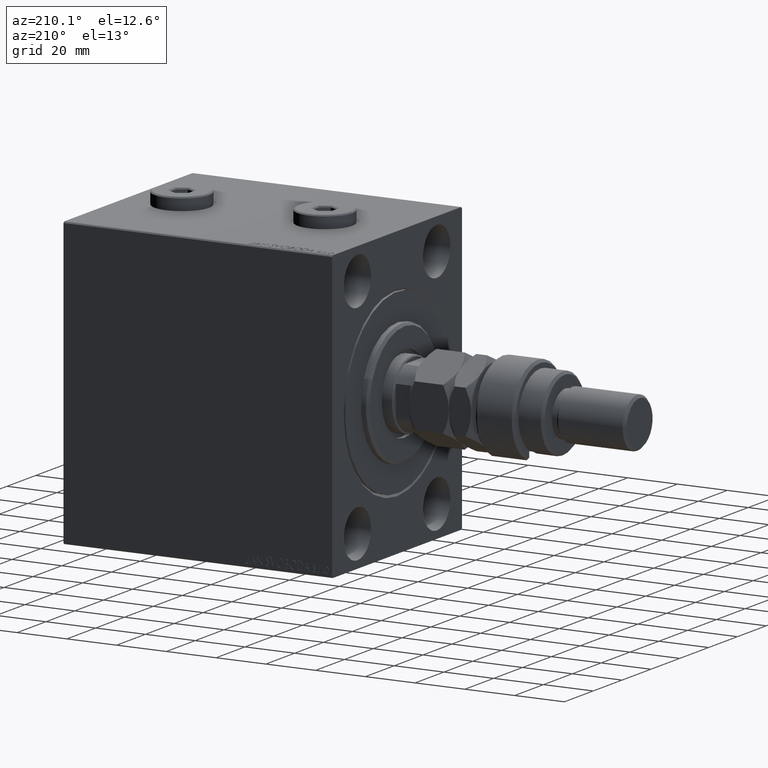
[diagram: clean part render]
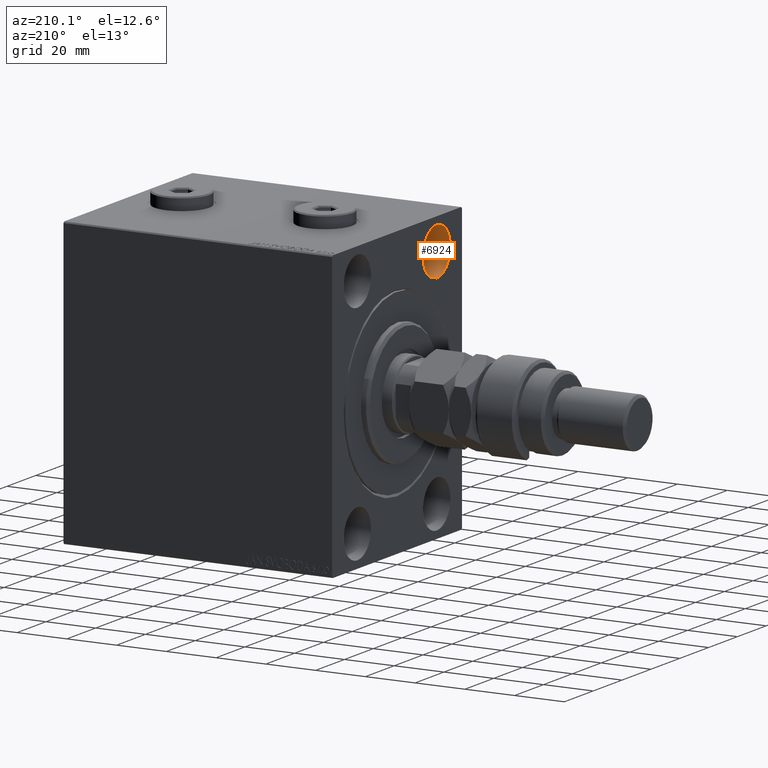
[diagram: same view with one face highlighted and labeled with its STEP entity id]
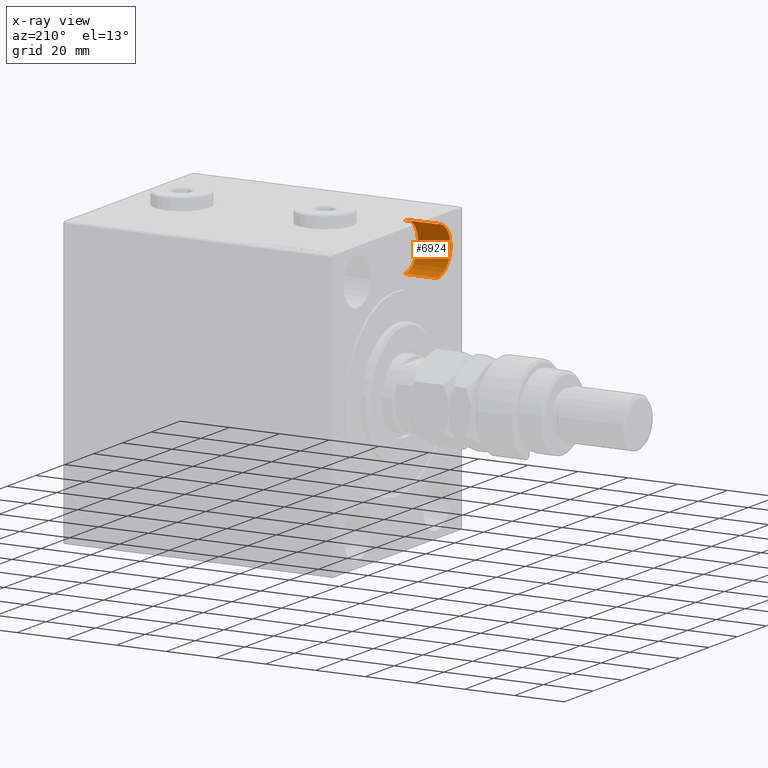
[diagram: x-ray of the same camera — body ghosted, the highlighted face saturated]
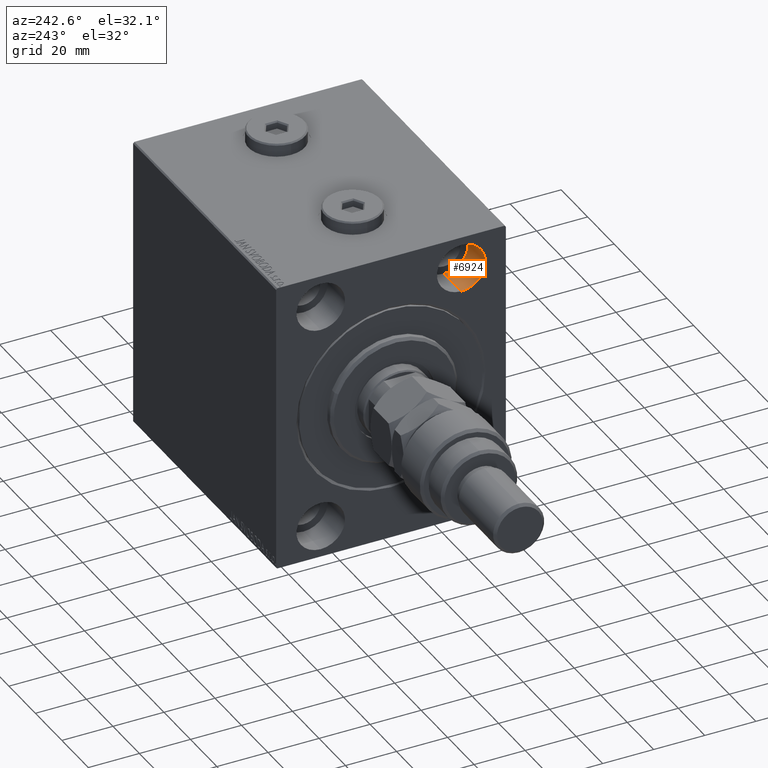
[diagram: same view with one face highlighted and labeled with its STEP entity id]
A machine part, auxiliary view. The second image highlights one B-rep face of the part: STEP entity #6924.
The next image is the same camera in x-ray: the body ghosted, the highlighted face saturated — about 1% of this face is hidden behind the body in this view.
A second angle (auxiliary view) of the same face is appended — the face is thin or edge-on in the first view.
In plain terms, the highlighted cylindrical surface (edge-blend (fillet) strip) has radius 9.5 mm, axis along (-1, -0, -0).
Its self-contained STEP definition (entity closure, byte-faithful):
#1244 = ORIENTED_EDGE ( 'NONE', *, *, #18214, .F. ) ;
#2565 = CARTESIAN_POINT ( 'NONE',  ( 13.00000000000000000, -27.49999999999998934, 54.50000000000000711 ) ) ;
#2939 = CARTESIAN_POINT ( 'NONE',  ( 0.000000000000000000, -27.49999999999998934, 45.00000000000000711 ) ) ;
#4079 = EDGE_CURVE ( 'NONE', #35228, #46953, #23012, .T. ) ;
#6020 = DIRECTION ( 'NONE',  ( -1.000000000000000000, 0.000000000000000000, 0.000000000000000000 ) ) ;
#6924 = ADVANCED_FACE ( 'NONE', ( #44088 ), #17783, .F. ) ;
#8600 = CIRCLE ( 'NONE', #35739, 9.500000000000001776 ) ;
#12261 = DIRECTION ( 'NONE',  ( -1.000000000000000000, -0.000000000000000000, -0.000000000000000000 ) ) ;
#12840 = CARTESIAN_POINT ( 'NONE',  ( 13.00000000000000000, -27.49999999999998934, 45.00000000000000711 ) ) ;
#14059 = VECTOR ( 'NONE', #24747, 1000.000000000000000 ) ;
#14556 = VECTOR ( 'NONE', #12261, 1000.000000000000000 ) ;
#14631 = EDGE_LOOP ( 'NONE', ( #28594, #40794, #21602, #1244 ) ) ;
#17783 = CYLINDRICAL_SURFACE ( 'NONE', #38768, 9.500000000000001776 ) ;
#18214 = EDGE_CURVE ( 'NONE', #22099, #32469, #31343, .T. ) ;
#19064 = CARTESIAN_POINT ( 'NONE',  ( 0.000000000000000000, -27.49999999999998934, 35.50000000000000711 ) ) ;
#21602 = ORIENTED_EDGE ( 'NONE', *, *, #30931, .T. ) ;
#22099 = VERTEX_POINT ( 'NONE', #33608 ) ;
#23012 = LINE ( 'NONE', #30790, #14556 ) ;
#24747 = DIRECTION ( 'NONE',  ( -1.000000000000000000, -0.000000000000000000, -0.000000000000000000 ) ) ;
#25604 = DIRECTION ( 'NONE',  ( 0.000000000000000000, 0.000000000000000000, 1.000000000000000000 ) ) ;
#27494 = DIRECTION ( 'NONE',  ( 0.000000000000000000, 0.000000000000000000, 1.000000000000000000 ) ) ;
#28594 = ORIENTED_EDGE ( 'NONE', *, *, #39839, .F. ) ;
#30790 = CARTESIAN_POINT ( 'NONE',  ( 13.00000000000000000, -27.49999999999998934, 35.50000000000000711 ) ) ;
#30931 = EDGE_CURVE ( 'NONE', #46953, #32469, #34004, .T. ) ;
#31343 = LINE ( 'NONE', #2565, #14059 ) ;
#31668 = AXIS2_PLACEMENT_3D ( 'NONE', #2939, #43389, #32678 ) ;
#32469 = VERTEX_POINT ( 'NONE', #34970 ) ;
#32662 = DIRECTION ( 'NONE',  ( -1.000000000000000000, -0.000000000000000000, -0.000000000000000000 ) ) ;
#32678 = DIRECTION ( 'NONE',  ( 0.000000000000000000, 0.000000000000000000, 1.000000000000000000 ) ) ;
#33608 = CARTESIAN_POINT ( 'NONE',  ( 13.00000000000000000, -27.49999999999998934, 54.50000000000000711 ) ) ;
#34004 = CIRCLE ( 'NONE', #31668, 9.500000000000001776 ) ;
#34970 = CARTESIAN_POINT ( 'NONE',  ( 0.000000000000000000, -27.49999999999998934, 54.50000000000000711 ) ) ;
#35228 = VERTEX_POINT ( 'NONE', #37170 ) ;
#35739 = AXIS2_PLACEMENT_3D ( 'NONE', #12840, #6020, #27494 ) ;
#37170 = CARTESIAN_POINT ( 'NONE',  ( 13.00000000000000000, -27.49999999999998934, 35.50000000000000711 ) ) ;
#38768 = AXIS2_PLACEMENT_3D ( 'NONE', #47980, #32662, #25604 ) ;
#39839 = EDGE_CURVE ( 'NONE', #35228, #22099, #8600, .T. ) ;
#40794 = ORIENTED_EDGE ( 'NONE', *, *, #4079, .T. ) ;
#43389 = DIRECTION ( 'NONE',  ( -1.000000000000000000, 0.000000000000000000, 0.000000000000000000 ) ) ;
#44088 = FACE_OUTER_BOUND ( 'NONE', #14631, .T. ) ;
#46953 = VERTEX_POINT ( 'NONE', #19064 ) ;
#47980 = CARTESIAN_POINT ( 'NONE',  ( 13.00000000000000000, -27.49999999999998934, 45.00000000000000711 ) ) ;